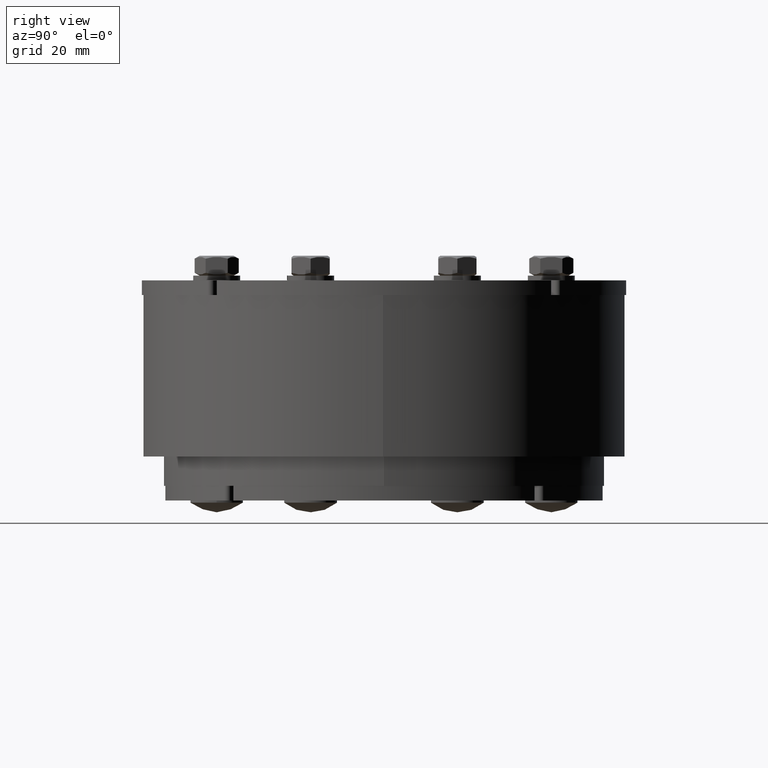
[diagram: clean part render]
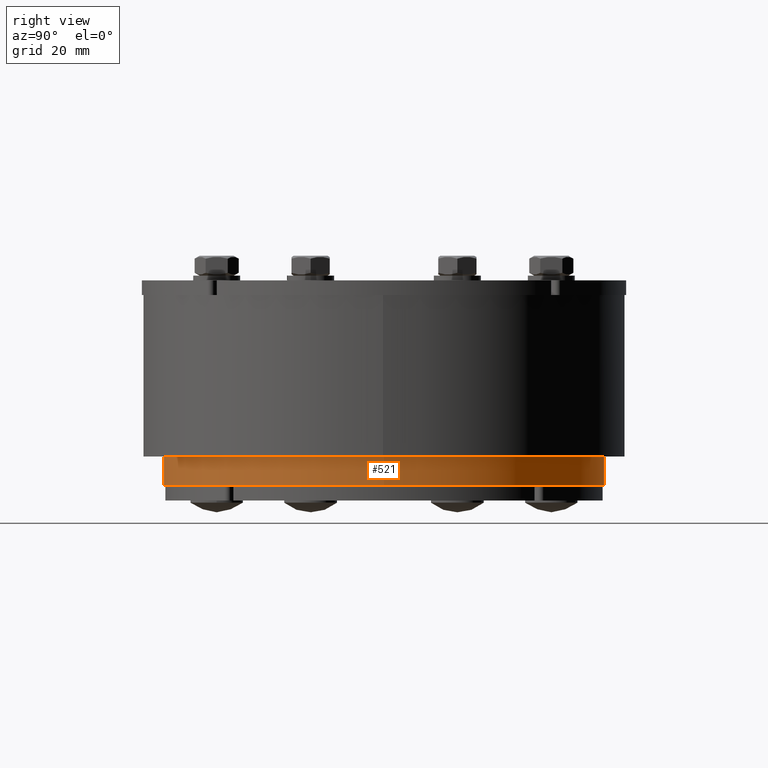
[diagram: same view with one face highlighted and labeled with its STEP entity id]
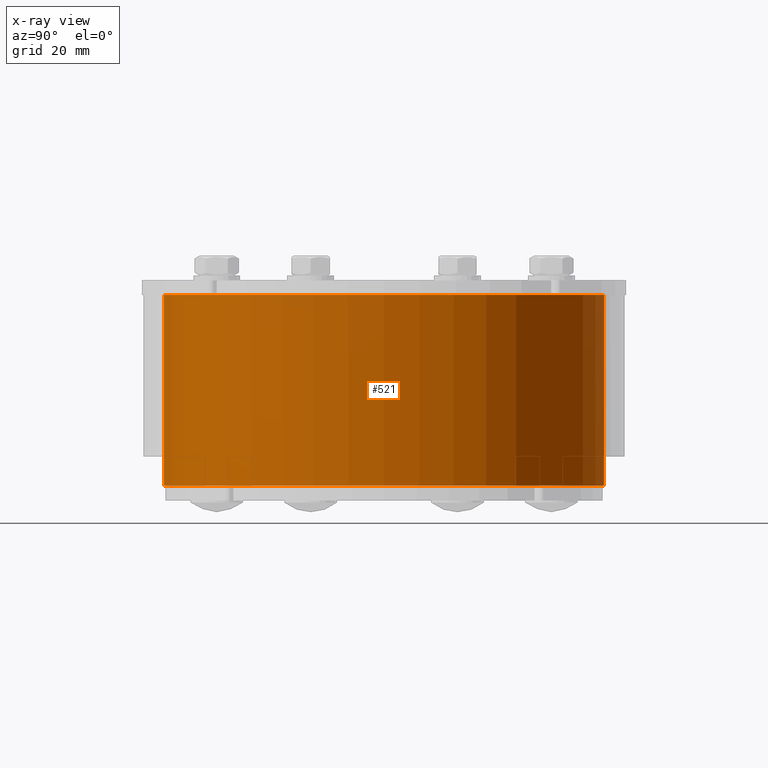
[diagram: x-ray of the same camera — body ghosted, the highlighted face saturated]
A machine part, right view. The second image highlights one B-rep face of the part: STEP entity #521.
The next image is the same camera in x-ray: the body ghosted, the highlighted face saturated — about 0% of this face is hidden behind the body in this view.
In plain terms, the highlighted cylindrical surface (bore or boss wall) has radius 75 mm, axis along (0, 0, -1).
Its self-contained STEP definition (entity closure, byte-faithful):
#494=CARTESIAN_POINT('',(0.0,0.0,0.0));
#495=DIRECTION('',(0.0,0.0,-1.0));
#496=DIRECTION('',(-1.0,0.0,0.0));
#497=AXIS2_PLACEMENT_3D('',#494,#495,#496);
#498=CYLINDRICAL_SURFACE('',#497,75.0);
#499=CARTESIAN_POINT('',(75.0,9.184851E-015,-65.0));
#500=VERTEX_POINT('',#499);
#501=CARTESIAN_POINT('',(0.0,0.0,-65.0));
#502=DIRECTION('',(0.0,0.0,-1.0));
#503=DIRECTION('',(-1.0,0.0,0.0));
#504=AXIS2_PLACEMENT_3D('',#501,#502,#503);
#505=CIRCLE('',#504,75.0);
#506=EDGE_CURVE('',#500,#500,#505,.T.);
#507=ORIENTED_EDGE('',*,*,#506,.F.);
#508=EDGE_LOOP('',(#507));
#509=FACE_OUTER_BOUND('',#508,.T.);
#510=CARTESIAN_POINT('',(75.0,9.184851E-015,0.0));
#511=VERTEX_POINT('',#510);
#512=CARTESIAN_POINT('',(0.0,0.0,0.0));
#513=DIRECTION('',(0.0,0.0,-1.0));
#514=DIRECTION('',(-1.0,0.0,0.0));
#515=AXIS2_PLACEMENT_3D('',#512,#513,#514);
#516=CIRCLE('',#515,75.0);
#517=EDGE_CURVE('',#511,#511,#516,.T.);
#518=ORIENTED_EDGE('',*,*,#517,.T.);
#519=EDGE_LOOP('',(#518));
#520=FACE_BOUND('',#519,.T.);
#521=ADVANCED_FACE('',(#509,#520),#498,.T.);